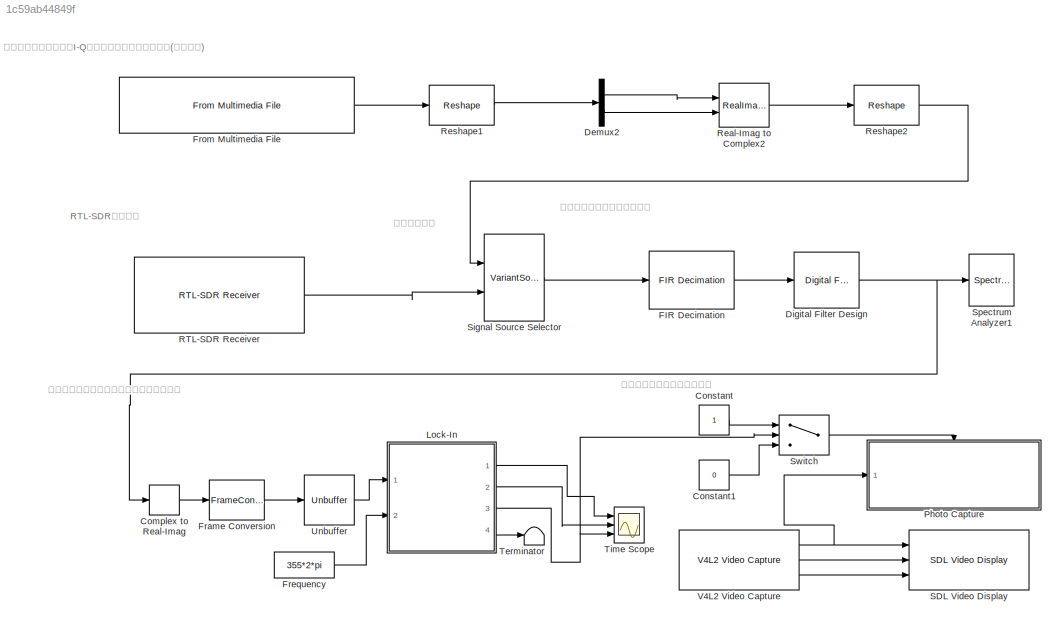
MODEL slx_1c59ab44849f
KIND model
CONFIG AbsTol = auto
CONFIG FixedStep = auto
CONFIG MaxStep = auto
CONFIG MinStep = auto
CONFIG RelTol = 1e-3
CONFIG SampleTimeConstraint = Unconstrained
CONFIG Solver = VariableStepAuto
CONFIG SolverMode = Auto
CONFIG SolverName = VariableStepAuto
CONFIG StartTime = 0.0
CONFIG StopTime = inf
BLOCK [ComplexToRealImag] Complex to Real-Imag
  Output = Real
  Ports = [1, 1]
BLOCK [Constant] Constant
BLOCK [Constant] Constant1
  Value = 0
BLOCK [Demux] Demux2
  DisplayOption = bar
  Outputs = [1024, -1]
  Ports = [1, 2]
BLOCK [Reference] Digital Filter Design  REF=dsparch4/Digital
Filter Design
  Ports = [1, 1]
  SourceBlock = dsparch4/Digital\nFilter Design
  SourceType = Digital Filter Design
  UserDataPersistent = on
BLOCK [Reference] FIR Decimation  REF=dspmlti4/FIR
Decimation
  Ports = [1, 1]
  SourceBlock = dspmlti4/FIR\nDecimation
  SourceType = FIR Decimation
  UserDataPersistent = on
BLOCK [FrameConversion] Frame Conversion
  InheritSamplingMode = off
  OutFrame = Sample-based
  Ports = [1, 1]
BLOCK [Constant] Frequency
  Value = 355*2*pi
BLOCK [Reference] From Multimedia File  REF=dspvision/From Multimedia File
  Ports = [0, 1]
  SourceBlock = dspvision/From Multimedia File
  SourceType = From Multimedia File
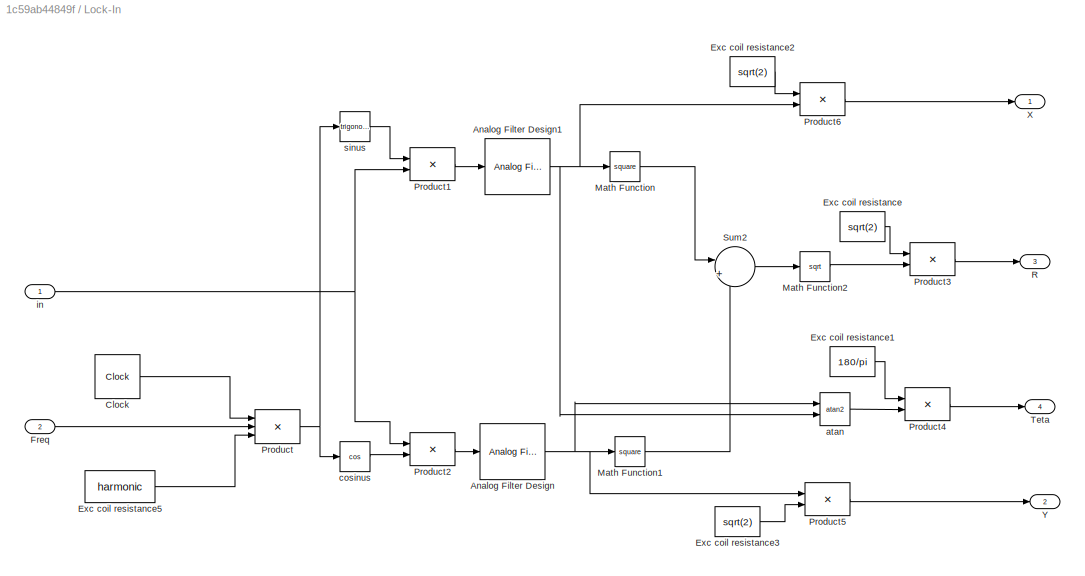
BLOCK [SubSystem] Lock-In
  Description = Lock in Amplifier
  Ports = [2, 4]
  RequestExecContextInheritance = off
  Variant = off
BLOCK [Reference] Lock-In/Analog Filter Design  REF=dsparch4/Analog
Filter Design
  Ports = [1, 1]
  SourceBlock = dsparch4/Analog\nFilter Design
  SourceType = Analog Filter Design
BLOCK [Reference] Lock-In/Analog Filter Design1  REF=dsparch4/Analog
Filter Design
  Ports = [1, 1]
  SourceBlock = dsparch4/Analog\nFilter Design
  SourceType = Analog Filter Design
BLOCK [Clock] Lock-In/Clock
BLOCK [Constant] Lock-In/Exc coil resistance
  Value = sqrt(2)
BLOCK [Constant] Lock-In/Exc coil resistance1
  Value = 180/pi
BLOCK [Constant] Lock-In/Exc coil resistance2
  Value = sqrt(2)
BLOCK [Constant] Lock-In/Exc coil resistance3
  Value = sqrt(2)
BLOCK [Constant] Lock-In/Exc coil resistance5
  Value = harmonic
BLOCK [Inport] Lock-In/Freq
  IconDisplay = Port number
  Port = 2
BLOCK [Math] Lock-In/Math Function
  Operator = square
  Ports = [1, 1]
BLOCK [Math] Lock-In/Math Function1
  Operator = square
  Ports = [1, 1]
BLOCK [Math] Lock-In/Math Function2
  Operator = sqrt
  Ports = [1, 1]
BLOCK [Product] Lock-In/Product
  Inputs = ***
  Ports = [3, 1]
BLOCK [Product] Lock-In/Product1
  Ports = [2, 1]
BLOCK [Product] Lock-In/Product2
  Ports = [2, 1]
BLOCK [Product] Lock-In/Product3
  Ports = [2, 1]
BLOCK [Product] Lock-In/Product4
  Ports = [2, 1]
BLOCK [Product] Lock-In/Product5
  Ports = [2, 1]
BLOCK [Product] Lock-In/Product6
  Ports = [2, 1]
BLOCK [Outport] Lock-In/R
  IconDisplay = Port number
  Port = 3
BLOCK [Sum] Lock-In/Sum2
  IconShape = round
  Inputs = |++
  Ports = [2, 1]
BLOCK [Outport] Lock-In/Teta
  IconDisplay = Port number
  Port = 4
BLOCK [Outport] Lock-In/X
  IconDisplay = Port number
BLOCK [Outport] Lock-In/Y
  IconDisplay = Port number
  Port = 2
BLOCK [Trigonometry] Lock-In/atan
  Operator = atan2
  OutputSignalType = real
  Ports = [2, 1]
BLOCK [Trigonometry] Lock-In/cosinus
  Operator = cos
  Ports = [1, 1]
BLOCK [Inport] Lock-In/in
  IconDisplay = Port number
BLOCK [Trigonometry] Lock-In/sinus
  Ports = [1, 1]
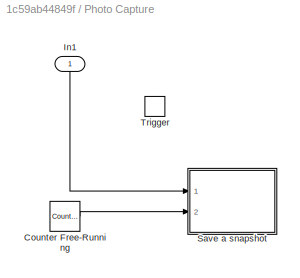
BLOCK [SubSystem] Photo Capture
  Ports = [1, 0, 0, 1]
  RequestExecContextInheritance = off
  Variant = off
BLOCK [Reference] Photo Capture/Counter Free-Running  REF=simulink/Sources/Counter
Free-Running
  Ports = [0, 1]
  SourceBlock = simulink/Sources/Counter\nFree-Running
  SourceType = Counter Free-Running
BLOCK [Inport] Photo Capture/In1
  IconDisplay = Port number
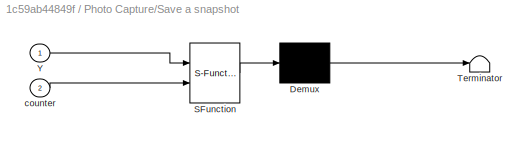
BLOCK [SubSystem] Photo Capture/Save a snapshot
  ErrorFcn = Stateflow.Translate.translate
  PermitHierarchicalResolution = ExplicitOnly
  Ports = [2]
  RequestExecContextInheritance = off
  SFBlockType = MATLAB Function
  TreatAsAtomicUnit = on
  Variant = off
BLOCK [Demux] Photo Capture/Save a snapshot/ Demux 
  Outputs = 1
  Ports = [1, 1]
BLOCK [S-Function] Photo Capture/Save a snapshot/ SFunction 
  EnableBusSupport = on
  FunctionName = sf_sfun
  PortCounts = [2 1]
  Ports = [2, 1]
  SFunctionDeploymentMode = off
  Tag = Stateflow S-Function rpiHROtest06 2
BLOCK [Terminator] Photo Capture/Save a snapshot/ Terminator 
BLOCK [Inport] Photo Capture/Save a snapshot/Y
  IconDisplay = Port number
BLOCK [Inport] Photo Capture/Save a snapshot/counter
  IconDisplay = Port number
  Port = 2
BLOCK [TriggerPort] Photo Capture/Trigger
  Ports = []
  StatesWhenEnabling = held
  VariantControl = Variant
BLOCK [Reference] RTL-SDR Receiver  REF=sdrrlib/RTL-SDR
Receiver
  Ports = [0, 1]
  SourceBlock = sdrrlib/RTL-SDR\nReceiver
  SourceLibraryInfo = This block requires <a href="http://www.mathworks.com/hardware-support/rtl-sdr.html">Communications System Toolbox Support Package for RTL-SDR Radio</a>
  SourceType = RTL-SDR Receiver
BLOCK [RealImagToComplex] Real-Imag to Complex2
  Ports = [2, 1]
BLOCK [Reshape] Reshape1
  OutputDimensionality = Row vector (2-D)
  OutputDimensions = [1]
  Ports = [1, 1]
BLOCK [Reshape] Reshape2
  OutputDimensionality = Column vector (2-D)
  OutputDimensions = [1]
  Ports = [1, 1]
BLOCK [Reference] SDL Video Display  REF=embdlinuxlib/SDL Video Display
  Ports = [3]
  SourceBlock = embdlinuxlib/SDL Video Display
  SourceType = SDL Video Display
BLOCK [VariantSource] Signal Source Selector
  OverrideUsingVariant = ReadFromFile
  Ports = [2, 1]
BLOCK [SpectrumAnalyzer] Spectrum Analyzer1
  NumInputPorts = 1
  Ports = [1]
  ScopeSpecificationString = spbscopes.SpectrumAnalyzerBlockCfg('CurrentConfiguration', extmgr.ConfigurationSet(extmgr.Configuration('Core','General UI',true),extmgr.Configuration('Core','Source UI',true),extmgr.Configuration('Sources','WiredSimulink',true),extmgr.Configuration('Visuals','Spectrum',true,'AxesProperties',struct('Color',[0 0 0],'XColor',[0.686274509803922 0.686274509803922 0.686274509803922],'YColor',[0.6862745...<+1562ch>
BLOCK [Switch] Switch
  Criteria = u2 > Threshold
  InputSameDT = off
  SaturateOnIntegerOverflow = off
  Threshold = 4
BLOCK [Terminator] Terminator
BLOCK [Scope] Time Scope
  DefaultConfigurationName = spbscopes.TimeScopeBlockCfg
  NumInputPorts = 3
  Ports = [3]
  ScopeSpecificationString = spbscopes.TimeScopeBlockCfg('CurrentConfiguration', extmgr.ConfigurationSet(extmgr.Configuration('Core','General UI',true),extmgr.Configuration('Core','Source UI',true),extmgr.Configuration('Sources','WiredSimulink',true,'DataLoggingVariableName','ScopeData1'),extmgr.Configuration('Visuals','Time Domain',true,'DisplayLayoutDimensions',[3 1],'DisplayPropertyDefaults',struct('YLabelReal','Amplitude'...<+2738ch>
  UserDataPersistent = on
BLOCK [Unbuffer] Unbuffer
  Ports = [1, 1]
  SampleBasedProcessing = Same as frame based
BLOCK [Reference] V4L2 Video Capture  REF=embdlinuxlib/V4L2 Video Capture
  Ports = [0, 3]
  SourceBlock = embdlinuxlib/V4L2 Video Capture
  SourceType = V4L2 Video Capture
ANNOTATION (root): ディジタルフィルタブロック
ANNOTATION (root): ロックインアンプ流星エコー検出ブロック
ANNOTATION (root): RTL-SDRブロック
ANNOTATION (root): カメラコントロールブロック
ANNOTATION (root): 保存したベースバンドI-Q信号ファイル再生ブロック (テスト用)
ANNOTATION (root): 入力セレクタ
LINE Complex to Real-Imag:1 -> Frame Conversion:1
LINE Constant1:1 -> Switch:3
LINE Constant:1 -> Switch:1
LINE Demux2:1 -> Real-Imag to Complex2:1
LINE Demux2:2 -> Real-Imag to Complex2:2
NET Digital Filter Design:1 -> Complex to Real-Imag:1, Spectrum Analyzer1:1
LINE FIR Decimation:1 -> Digital Filter Design:1
LINE Frame Conversion:1 -> Unbuffer:1
LINE Frequency:1 -> Lock-In:2
LINE From Multimedia File:1 -> Reshape1:1
NET Lock-In/Analog Filter Design1:1 -> Lock-In/Math Function:1, Lock-In/Product6:2, Lock-In/atan:2
NET Lock-In/Analog Filter Design:1 -> Lock-In/Math Function1:1, Lock-In/Product5:1, Lock-In/atan:1
LINE Lock-In/Clock:1 -> Lock-In/Product:1
LINE Lock-In/Exc coil resistance1:1 -> Lock-In/Product4:1
LINE Lock-In/Exc coil resistance2:1 -> Lock-In/Product6:1
LINE Lock-In/Exc coil resistance3:1 -> Lock-In/Product5:2
LINE Lock-In/Exc coil resistance5:1 -> Lock-In/Product:3
LINE Lock-In/Exc coil resistance:1 -> Lock-In/Product3:1
LINE Lock-In/Freq:1 -> Lock-In/Product:2
LINE Lock-In/Math Function1:1 -> Lock-In/Sum2:2
LINE Lock-In/Math Function2:1 -> Lock-In/Product3:2
LINE Lock-In/Math Function:1 -> Lock-In/Sum2:1
LINE Lock-In/Product1:1 -> Lock-In/Analog Filter Design1:1
LINE Lock-In/Product2:1 -> Lock-In/Analog Filter Design:1
LINE Lock-In/Product3:1 -> Lock-In/R:1
LINE Lock-In/Product4:1 -> Lock-In/Teta:1
LINE Lock-In/Product5:1 -> Lock-In/Y:1
LINE Lock-In/Product6:1 -> Lock-In/X:1
NET Lock-In/Product:1 -> Lock-In/cosinus:1, Lock-In/sinus:1
LINE Lock-In/Sum2:1 -> Lock-In/Math Function2:1
LINE Lock-In/atan:1 -> Lock-In/Product4:2
LINE Lock-In/cosinus:1 -> Lock-In/Product2:2
NET Lock-In/in:1 -> Lock-In/Product1:2, Lock-In/Product2:1
LINE Lock-In/sinus:1 -> Lock-In/Product1:1
LINE Lock-In:1 -> Time Scope:1
LINE Lock-In:2 -> Time Scope:2
NET Lock-In:3 -> Switch:2, Time Scope:3
LINE Lock-In:4 -> Terminator:1
LINE Photo Capture/Counter Free-Running:1 -> Photo Capture/Save a snapshot:2
LINE Photo Capture/In1:1 -> Photo Capture/Save a snapshot:1
LINE RTL-SDR Receiver:1 -> Signal Source Selector:2
LINE Real-Imag to Complex2:1 -> Reshape2:1
LINE Reshape1:1 -> Demux2:1
LINE Reshape2:1 -> Signal Source Selector:1
LINE Signal Source Selector:1 -> FIR Decimation:1
LINE Switch:1 -> Photo Capture:trigger
LINE Unbuffer:1 -> Lock-In:1
NET V4L2 Video Capture:1 -> Photo Capture:1, SDL Video Display:1
LINE V4L2 Video Capture:2 -> SDL Video Display:2
LINE V4L2 Video Capture:3 -> SDL Video Display:3
note: NET lines group one-source signal fan-out (src -> all destinations, sorted); 1:1 wires keep LINE
CHART Photo Capture/Save a snapshot states=1 transitions=1
  STATE_LABEL 'eML_blk_kernel()'
  STATE_LABEL "SCRIPT:\nfunction fcn(Y, counter)\n%#codegen\n\n% Save 160x120 grayscale image to a file\nformat = ['%d ', 0];\nfname  = coder.nullcopy(uint8(zeros(1, 32)));\ncoder.ceval('sprintf', coder.wref(fname), ['img%d.dat', 0], counter);\nfd = coder.opaque('FILE *');\nfd = coder.ceval('fopen', fname, ['w', 0]);\nfor i = 1:160\n    for j = 1:120\n        coder.ceval('fprintf', fd, format, Y(i, j));\n    end\nend\ncoder.ce...<+20ch>"
